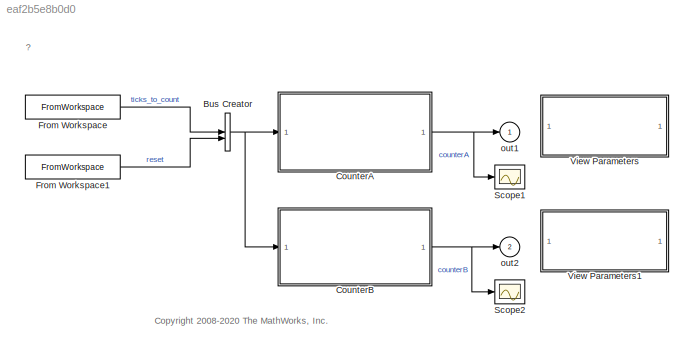
MODEL slx_eaf2b5e8b0d0
KIND model
CONFIG AbsTol = auto
CONFIG EnableMultiTasking = off
CONFIG FixedStep = T
CONFIG MaxStep = auto
CONFIG MinStep = auto
CONFIG PostLoadFcn = rtwdemo_overrides={'CodeProfilingInstrumentation','CodeProfilingSaveOptions','CodeExecutionProfiling','LaunchReport','PassReuseOutputArgsAs','ProdHWDeviceType','PortableWordSizes','ProdIntDivRoundTo','GenerateCodeMetricsReport'};\nrtwconfiguredemo(gcs,'ERT',rtwdemo_overrides{:});\nrtwdemo_cs=getActiveConfigSet(gcs);\nsetProp(rtwdemo_cs,'CustomSymbolStr','$R$N$M');\nset_param(gcs,'dirty','off');\nclear ...<+47ch>
CONFIG RelTol = 1e-3
CONFIG SampleTimeConstraint = Unconstrained
CONFIG SolverName = FixedStepDiscrete
CONFIG StartTime = 0.0
CONFIG StopTime = 10
BLOCK [BusCreator] Bus Creator
  DisplayOption = bar
  InheritFromInputs = on
  Inputs = 'ticks_to_count','reset'
  NonVirtualBus = on
  OutDataTypeStr = Bus: SilCounterBus
BLOCK [ModelReference] CounterA
  CodeInterface = Top model
  ModelNameDialog = SILCounter
  ModelReferenceVersion = 6.2
BLOCK [ModelReference] CounterB
  ModelNameDialog = SILCounter
  ModelReferenceVersion = 6.2
BLOCK [FromWorkspace] From Workspace
  SampleTime = T
  VariableName = ticks_to_count
BLOCK [FromWorkspace] From Workspace1
  SampleTime = T
  VariableName = reset
BLOCK [Scope] Scope1
  Floating = off
  NumInputPorts = 1
  ScopeSpecificationString = Simulink.scopes.TimeScopeBlockCfg('CurrentConfiguration', extmgr.ConfigurationSet(extmgr.Configuration('Core','General UI',true,'FigureColor',[0.156862745098039 0.156862745098039 0.156862745098039]),extmgr.Configuration('Core','Source UI',true),extmgr.Configuration('Sources','WiredSimulink',true,'DataLoggingSaveFormat','StructureWithTime','DataLoggingLimitDataPoints',true,'DataLoggingDecimation','...<+1673ch>
BLOCK [Scope] Scope2
  Floating = off
  NumInputPorts = 1
  ScopeSpecificationString = Simulink.scopes.TimeScopeBlockCfg('CurrentConfiguration', extmgr.ConfigurationSet(extmgr.Configuration('Core','General UI',true,'FigureColor',[0.156862745098039 0.156862745098039 0.156862745098039]),extmgr.Configuration('Core','Source UI',true),extmgr.Configuration('Sources','WiredSimulink',true,'DataLoggingVariableName','ScopeData1','DataLoggingSaveFormat','StructureWithTime','DataLoggingLimitDat...<+1712ch>
BLOCK [SubSystem] View Parameters
  OpenFcn = hilite_system([bdroot '/CounterB'], 'none');\nhilite_system([bdroot '/CounterA']);\nopen_system([bdroot '/CounterA'], 'parameter');
  PermitHierarchicalResolution = ExplicitOnly
BLOCK [SubSystem] View Parameters1
  OpenFcn = hilite_system([bdroot '/CounterA'], 'none');\nhilite_system([bdroot '/CounterB']);\nopen_system([bdroot '/CounterB'], 'parameter');
  PermitHierarchicalResolution = ExplicitOnly
BLOCK [Outport] out1
  VectorParamsAs1DForOutWhenUnconnected = off
BLOCK [Outport] out2
  Port = 2
  VectorParamsAs1DForOutWhenUnconnected = off
ANNOTATION (root): ?
ANNOTATION (root): <copyright redacted>
NET Bus Creator:1 -> CounterA:1, CounterB:1
NET CounterA:1 -> Scope1:1, out1:1
NET CounterB:1 -> Scope2:1, out2:1
LINE From Workspace1:1 -> Bus Creator:2
LINE From Workspace:1 -> Bus Creator:1
note: NET lines group one-source signal fan-out (src -> all destinations, sorted); 1:1 wires keep LINE
